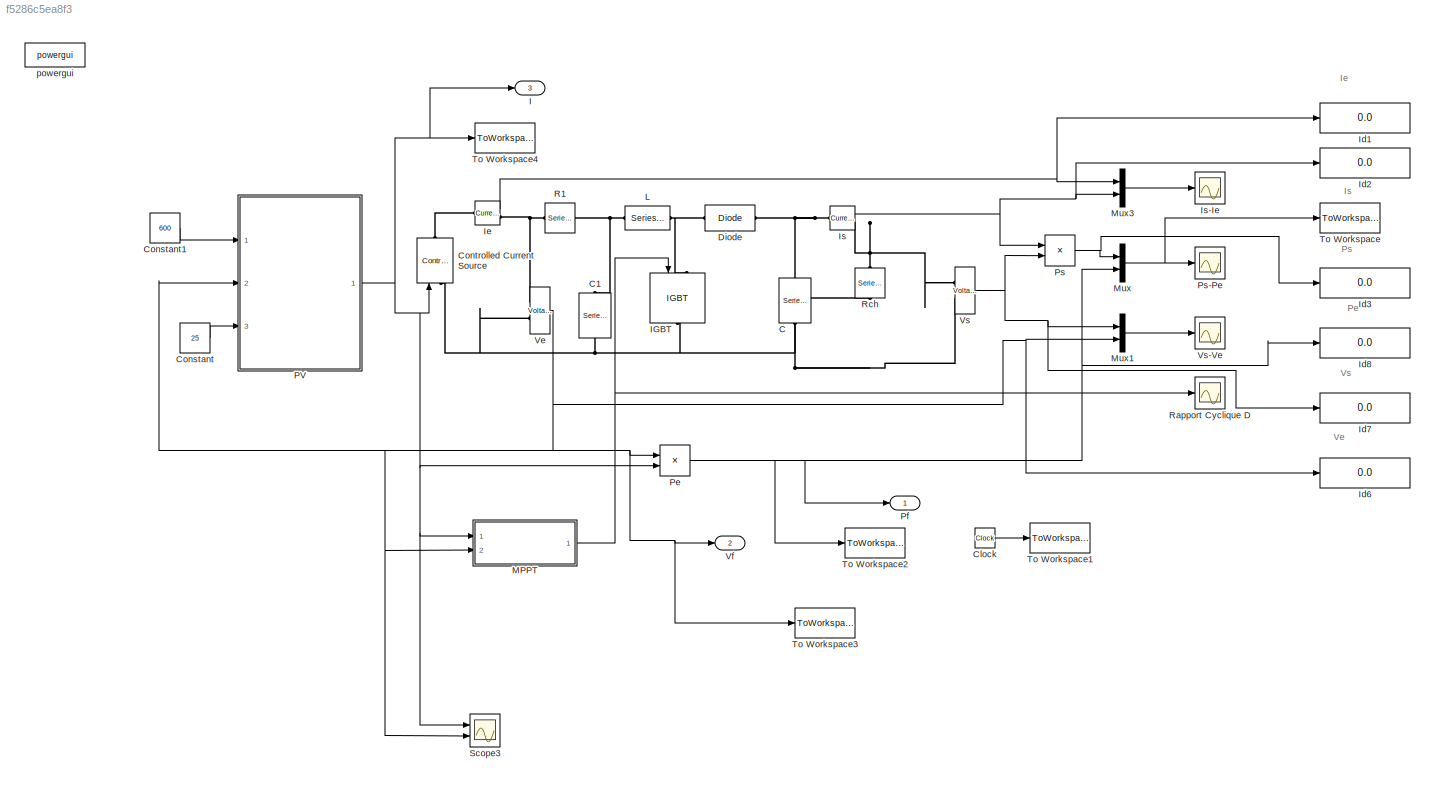
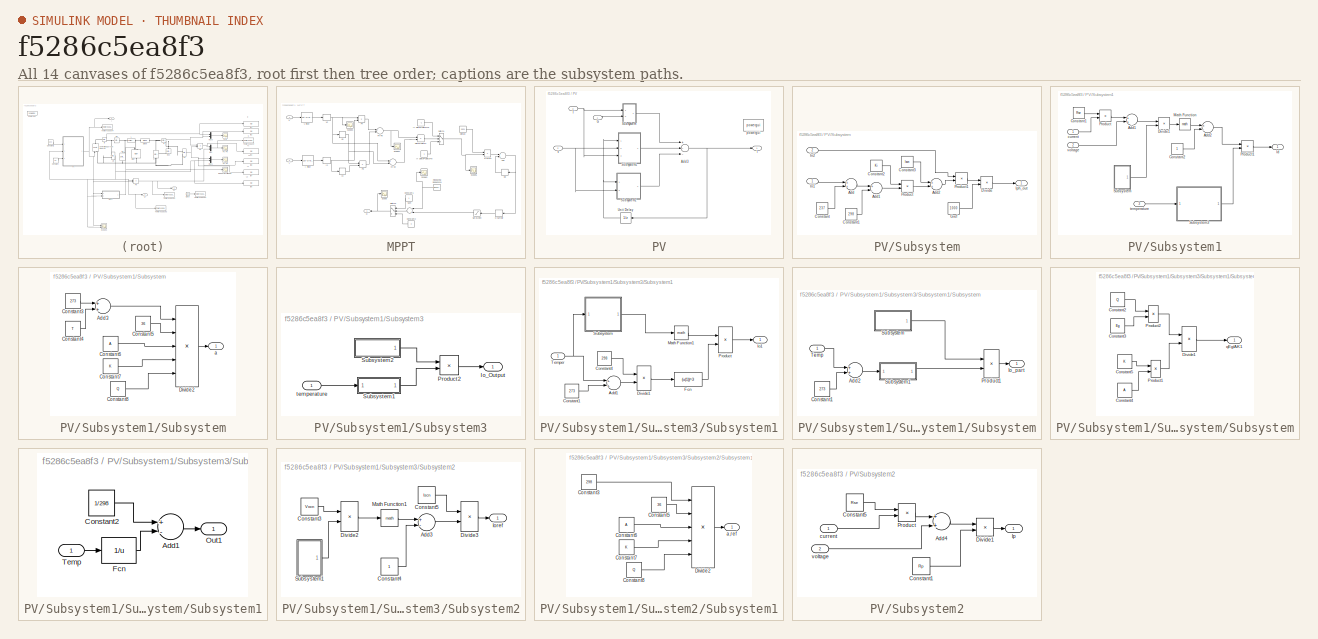
[diagram: thumbnail index - all 14 canvases of the model, root first then tree order]
MODEL slx_f5286c5ea8f3
KIND model
CONFIG AbsTol = auto
CONFIG FixedStep = auto
CONFIG MaxStep = auto
CONFIG MinStep = auto
CONFIG RelTol = 1e-3
CONFIG SampleTimeConstraint = Unconstrained
CONFIG Solver = VariableStepAuto
CONFIG SolverMode = Auto
CONFIG SolverName = VariableStepAuto
CONFIG StartTime = 0.0
CONFIG StopTime = 5
BLOCK [Reference] C  REF=powerlib/Elements/Series RLC Branch
  Ports = [0, 0, 0, 0, 0, 1, 1]
  SourceBlock = powerlib/Elements/Series RLC Branch
  SourceType = Series RLC Branch
BLOCK [Reference] C1  REF=powerlib/Elements/Series RLC Branch
  Ports = [0, 0, 0, 0, 0, 1, 1]
  SourceBlock = powerlib/Elements/Series RLC Branch
  SourceType = Series RLC Branch
BLOCK [Clock] Clock
BLOCK [Constant] Constant
  Value = 25
BLOCK [Constant] Constant1
  Value = 600
BLOCK [Reference] Controlled Current Source  REF=powerlib/Electrical
Sources/Controlled Current Source
  Ports = [1, 0, 0, 0, 0, 1, 1]
  SourceBlock = powerlib/Electrical\nSources/Controlled Current Source
  SourceType = Controlled Current Source
BLOCK [Reference] Diode  REF=powerlib/Power
Electronics/Diode
  AttributesFormatString = \n
  Ports = [0, 0, 0, 0, 0, 1, 1]
  SourceBlock = powerlib/Power\nElectronics/Diode
  SourceType = Diode
BLOCK [Outport] I  
  IconDisplay = Port number
  Port = 3
BLOCK [Reference] IGBT  REF=powerlib/Power
Electronics/IGBT
  Ports = [1, 0, 0, 0, 0, 1, 1]
  SourceBlock = powerlib/Power\nElectronics/IGBT
  SourceType = IGBT
BLOCK [Display] Id1
  Decimation = 1
  Ports = [1]
BLOCK [Display] Id2
  Decimation = 1
  Ports = [1]
BLOCK [Display] Id3
  Decimation = 1
  Ports = [1]
BLOCK [Display] Id6
  Decimation = 1
  Ports = [1]
BLOCK [Display] Id7
  Decimation = 1
  Ports = [1]
BLOCK [Display] Id8
  Decimation = 1
  Ports = [1]
BLOCK [Reference] Ie  REF=powerlib/Measurements/Current Measurement
  AttributesFormatString = \n
  Ports = [0, 1, 0, 0, 0, 1, 1]
  SourceBlock = powerlib/Measurements/Current Measurement
  SourceType = Current Measurement
  Tag = PoWeRsYsTeMmEaSuReMeNt
BLOCK [Reference] Is  REF=powerlib/Measurements/Current Measurement
  AttributesFormatString = \n
  Ports = [0, 1, 0, 0, 0, 1, 1]
  SourceBlock = powerlib/Measurements/Current Measurement
  SourceType = Current Measurement
  Tag = PoWeRsYsTeMmEaSuReMeNt
BLOCK [Scope] Is-Ie
  Ports = [1]
  ScopeSpecificationString = Simulink.scopes.TimeScopeBlockCfg('CurrentConfiguration', extmgr.ConfigurationSet(extmgr.Configuration('Core','General UI',true,'FigureColor',[1 1 1]),extmgr.Configuration('Core','Source UI',true),extmgr.Configuration('Sources','WiredSimulink',true,'DataLoggingVariableName','ScopeData1'),extmgr.Configuration('Visuals','Time Domain',true,'SerializedDisplays',{struct('MinYLimReal','-0.40884','MaxYLi...<+1724ch>
BLOCK [Reference] L  REF=powerlib/Elements/Series RLC Branch
  Ports = [0, 0, 0, 0, 0, 1, 1]
  SourceBlock = powerlib/Elements/Series RLC Branch
  SourceType = Series RLC Branch
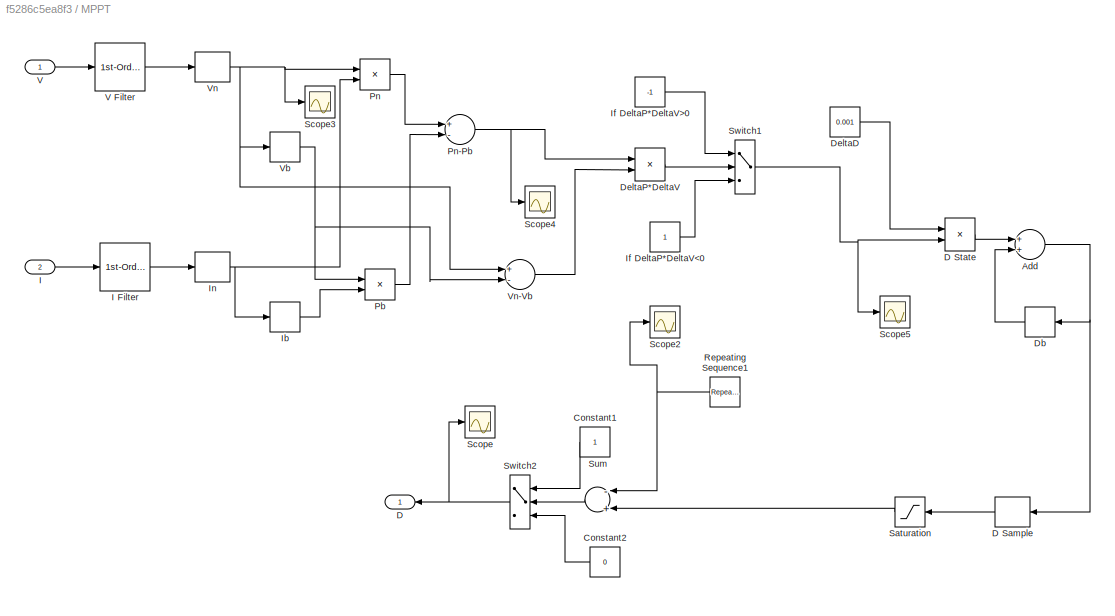
BLOCK [SubSystem] MPPT
  Ports = [2, 1]
  RequestExecContextInheritance = off
  Variant = off
BLOCK [Sum] MPPT/Add
  InputSameDT = off
  OutDataTypeStr = Inherit: Inherit via internal rule
  Ports = [2, 1]
  SaturateOnIntegerOverflow = off
BLOCK [Constant] MPPT/Constant1
  SampleTime = -1
BLOCK [Constant] MPPT/Constant2
  SampleTime = -1
  Value = 0
BLOCK [Outport] MPPT/D
  IconDisplay = Port number
BLOCK [ZeroOrderHold] MPPT/D Sample
  SampleTime = 1e-4
BLOCK [Product] MPPT/D State
  InputSameDT = off
  OutDataTypeStr = Inherit: Inherit via internal rule
  Ports = [2, 1]
  SaturateOnIntegerOverflow = off
BLOCK [Memory] MPPT/Db
  InheritSampleTime = on
  LinearizeAsDelay = on
BLOCK [Constant] MPPT/DeltaD
  Value = 0.001
BLOCK [Product] MPPT/DeltaP*DeltaV
  InputSameDT = off
  OutDataTypeStr = Inherit: Inherit via internal rule
  Ports = [2, 1]
  SaturateOnIntegerOverflow = off
BLOCK [Inport] MPPT/I
  IconDisplay = Port number
  Port = 2
BLOCK [Reference] MPPT/I Filter  REF=powerlib_extras/Control 
Blocks/1st-Order 
Filter
  Ports = [1, 1]
  SourceBlock = powerlib_extras/Control \nBlocks/1st-Order \nFilter
  SourceType = First-Order Filter
BLOCK [Memory] MPPT/Ib
  InheritSampleTime = on
  LinearizeAsDelay = on
BLOCK [Constant] MPPT/If DeltaP*DeltaV<0
BLOCK [Constant] MPPT/If DeltaP*DeltaV>0
  Value = -1
BLOCK [ZeroOrderHold] MPPT/In
  SampleTime = 1e-4
BLOCK [Product] MPPT/Pb
  InputSameDT = off
  OutDataTypeStr = Inherit: Inherit via internal rule
  Ports = [2, 1]
  SaturateOnIntegerOverflow = off
BLOCK [Product] MPPT/Pn
  InputSameDT = off
  OutDataTypeStr = Inherit: Inherit via internal rule
  Ports = [2, 1]
  SaturateOnIntegerOverflow = off
BLOCK [Sum] MPPT/Pn-Pb
  InputSameDT = off
  Inputs = +-
  OutDataTypeStr = Inherit: Inherit via internal rule
  Ports = [2, 1]
  SaturateOnIntegerOverflow = off
BLOCK [Reference] MPPT/Repeating Sequence1  REF=simulink/Sources/Repeating
Sequence
  Ports = [0, 1]
  SourceBlock = simulink/Sources/Repeating\nSequence
  SourceType = Repeating table
BLOCK [Saturate] MPPT/Saturation
  InputPortMap = u0
  LowerLimit = 0
  Ports = [1, 1]
  UpperLimit = 0.8
BLOCK [Scope] MPPT/Scope
  Ports = [1]
  ScopeSpecificationString = Simulink.scopes.TimeScopeBlockCfg('CurrentConfiguration', extmgr.ConfigurationSet(extmgr.Configuration('Core','General UI',true),extmgr.Configuration('Core','Source UI',true),extmgr.Configuration('Sources','WiredSimulink',true,'DataLoggingVariableName','ScopeData1'),extmgr.Configuration('Visuals','Time Domain',true,'SerializedDisplays',{struct('MinYLimReal','-0.125','MaxYLimReal','1.125','YLabelRe...<+1454ch>
BLOCK [Scope] MPPT/Scope2
  Ports = [1]
  ScopeSpecificationString = Simulink.scopes.TimeScopeBlockCfg('CurrentConfiguration', extmgr.ConfigurationSet(extmgr.Configuration('Core','General UI',true),extmgr.Configuration('Core','Source UI',true),extmgr.Configuration('Sources','WiredSimulink',true,'DataLoggingVariableName','ScopeData1'),extmgr.Configuration('Visuals','Time Domain',true,'SerializedDisplays',{struct('MinYLimReal','-0.125','MaxYLimReal','1.125','YLabelRe...<+1420ch>
BLOCK [Scope] MPPT/Scope3
  Ports = [1]
  ScopeSpecificationString = Simulink.scopes.TimeScopeBlockCfg('CurrentConfiguration', extmgr.ConfigurationSet(extmgr.Configuration('Core','General UI',true),extmgr.Configuration('Core','Source UI',true),extmgr.Configuration('Sources','WiredSimulink',true,'DataLoggingVariableName','ScopeData2'),extmgr.Configuration('Visuals','Time Domain',true,'SerializedDisplays',{struct('MinYLimReal','-84.75913','MaxYLimReal','109.01231','Y...<+1396ch>
BLOCK [Scope] MPPT/Scope4
  Ports = [1]
  ScopeSpecificationString = Simulink.scopes.TimeScopeBlockCfg('CurrentConfiguration', extmgr.ConfigurationSet(extmgr.Configuration('Core','General UI',true),extmgr.Configuration('Core','Source UI',true),extmgr.Configuration('Sources','WiredSimulink',true,'DataLoggingVariableName','ScopeData3'),extmgr.Configuration('Visuals','Time Domain',true,'SerializedDisplays',{struct('MinYLimReal','-6.68073','MaxYLimReal','7.59499','YLab...<+1418ch>
BLOCK [Scope] MPPT/Scope5
  Ports = [1]
  ScopeSpecificationString = Simulink.scopes.TimeScopeBlockCfg('CurrentConfiguration', extmgr.ConfigurationSet(extmgr.Configuration('Core','General UI',true),extmgr.Configuration('Core','Source UI',true),extmgr.Configuration('Sources','WiredSimulink',true,'DataLoggingVariableName','ScopeData4'),extmgr.Configuration('Visuals','Time Domain',true,'SerializedDisplays',{struct('MinYLimReal','-1.25','MaxYLimReal','1.25','YLabelReal...<+1402ch>
BLOCK [Sum] MPPT/Sum
  InputSameDT = off
  Inputs = -+
  OutDataTypeStr = Inherit: Inherit via internal rule
  Ports = [2, 1]
BLOCK [Switch] MPPT/Switch1
  InputSameDT = off
  SaturateOnIntegerOverflow = off
BLOCK [Switch] MPPT/Switch2
  InputSameDT = off
  SaturateOnIntegerOverflow = off
BLOCK [Inport] MPPT/V
  IconDisplay = Port number
BLOCK [Reference] MPPT/V Filter  REF=powerlib_extras/Control 
Blocks/1st-Order 
Filter
  Ports = [1, 1]
  SourceBlock = powerlib_extras/Control \nBlocks/1st-Order \nFilter
  SourceType = First-Order Filter
BLOCK [Memory] MPPT/Vb
  InheritSampleTime = on
  LinearizeAsDelay = on
BLOCK [ZeroOrderHold] MPPT/Vn
  SampleTime = 1e-4
BLOCK [Sum] MPPT/Vn-Vb
  InputSameDT = off
  Inputs = +-
  OutDataTypeStr = Inherit: Inherit via internal rule
  Ports = [2, 1]
  SaturateOnIntegerOverflow = off
BLOCK [Mux] Mux
  DisplayOption = bar
  Inputs = 2
  Ports = [2, 1]
BLOCK [Mux] Mux1
  DisplayOption = bar
  Inputs = 2
  Ports = [2, 1]
BLOCK [Mux] Mux3
  DisplayOption = bar
  Inputs = 2
  Ports = [2, 1]
BLOCK [SubSystem] PV
  Ports = [3, 1]
  RequestExecContextInheritance = off
  Variant = off
BLOCK [Sum] PV/Add3
  InputSameDT = off
  Inputs = +--
  OutDataTypeStr = Inherit: Inherit via internal rule
  Ports = [3, 1]
  SaturateOnIntegerOverflow = off
BLOCK [Inport] PV/G 
  IconDisplay = Port number
BLOCK [Outport] PV/I 
  IconDisplay = Port number
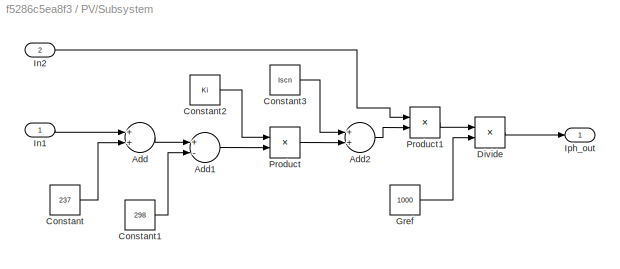
BLOCK [SubSystem] PV/Subsystem
  Ports = [2, 1]
  RequestExecContextInheritance = off
  Variant = off
BLOCK [Sum] PV/Subsystem/Add
  InputSameDT = off
  OutDataTypeStr = Inherit: Inherit via internal rule
  Ports = [2, 1]
  SaturateOnIntegerOverflow = off
BLOCK [Sum] PV/Subsystem/Add1
  InputSameDT = off
  Inputs = +-
  OutDataTypeStr = Inherit: Inherit via internal rule
  Ports = [2, 1]
  SaturateOnIntegerOverflow = off
BLOCK [Sum] PV/Subsystem/Add2
  InputSameDT = off
  OutDataTypeStr = Inherit: Inherit via internal rule
  Ports = [2, 1]
  SaturateOnIntegerOverflow = off
BLOCK [Constant] PV/Subsystem/Constant
  Value = 237
BLOCK [Constant] PV/Subsystem/Constant1
  Value = 298
BLOCK [Constant] PV/Subsystem/Constant2
  Value = Ki
BLOCK [Constant] PV/Subsystem/Constant3
  Value = Iscn
BLOCK [Product] PV/Subsystem/Divide
  InputSameDT = off
  Inputs = */
  OutDataTypeStr = Inherit: Inherit via internal rule
  Ports = [2, 1]
  RndMeth = Floor
  SaturateOnIntegerOverflow = off
BLOCK [Constant] PV/Subsystem/Gref 
  Value = 1000
BLOCK [Inport] PV/Subsystem/In1
  IconDisplay = Port number
BLOCK [Inport] PV/Subsystem/In2
  IconDisplay = Port number
  Port = 2
BLOCK [Outport] PV/Subsystem/Iph_out
  IconDisplay = Port number
BLOCK [Product] PV/Subsystem/Product
  InputSameDT = off
  OutDataTypeStr = Inherit: Inherit via internal rule
  Ports = [2, 1]
  RndMeth = Floor
  SaturateOnIntegerOverflow = off
BLOCK [Product] PV/Subsystem/Product1
  InputSameDT = off
  OutDataTypeStr = Inherit: Inherit via internal rule
  Ports = [2, 1]
  RndMeth = Floor
  SaturateOnIntegerOverflow = off
BLOCK [SubSystem] PV/Subsystem1
  Ports = [3, 1]
  RequestExecContextInheritance = off
  Variant = off
BLOCK [Sum] PV/Subsystem1/Add1
  InputSameDT = off
  OutDataTypeStr = Inherit: Inherit via internal rule
  Ports = [2, 1]
  SaturateOnIntegerOverflow = off
BLOCK [Sum] PV/Subsystem1/Add2
  InputSameDT = off
  Inputs = +-
  OutDataTypeStr = Inherit: Inherit via internal rule
  Ports = [2, 1]
  SaturateOnIntegerOverflow = off
BLOCK [Constant] PV/Subsystem1/Constant1
  Value = Rse
BLOCK [Constant] PV/Subsystem1/Constant2
BLOCK [Product] PV/Subsystem1/Divide1
  InputSameDT = off
  Inputs = */
  OutDataTypeStr = Inherit: Inherit via internal rule
  Ports = [2, 1]
  RndMeth = Floor
  SaturateOnIntegerOverflow = off
BLOCK [Outport] PV/Subsystem1/Id
  IconDisplay = Port number
BLOCK [Math] PV/Subsystem1/Math Function
  Ports = [1, 1]
BLOCK [Product] PV/Subsystem1/Product
  InputSameDT = off
  OutDataTypeStr = Inherit: Inherit via internal rule
  Ports = [2, 1]
  RndMeth = Floor
  SaturateOnIntegerOverflow = off
BLOCK [Product] PV/Subsystem1/Product1
  InputSameDT = off
  OutDataTypeStr = Inherit: Inherit via internal rule
  Ports = [2, 1]
  RndMeth = Floor
  SaturateOnIntegerOverflow = off
BLOCK [SubSystem] PV/Subsystem1/Subsystem
  Ports = [0, 1]
  RequestExecContextInheritance = off
  Variant = off
BLOCK [Sum] PV/Subsystem1/Subsystem/Add3
  InputSameDT = off
  OutDataTypeStr = Inherit: Inherit via internal rule
  Ports = [2, 1]
  SaturateOnIntegerOverflow = off
BLOCK [Constant] PV/Subsystem1/Subsystem/Constant3
  Value = 273
BLOCK [Constant] PV/Subsystem1/Subsystem/Constant4
  Value = T
BLOCK [Constant] PV/Subsystem1/Subsystem/Constant5
  Value = 36
BLOCK [Constant] PV/Subsystem1/Subsystem/Constant6
  Value = A
BLOCK [Constant] PV/Subsystem1/Subsystem/Constant7
  Value = K
BLOCK [Constant] PV/Subsystem1/Subsystem/Constant8
  Value = Q
BLOCK [Product] PV/Subsystem1/Subsystem/Divide2
  InputSameDT = off
  Inputs = ****/
  OutDataTypeStr = Inherit: Inherit via internal rule
  Ports = [5, 1]
  RndMeth = Floor
  SaturateOnIntegerOverflow = off
BLOCK [Outport] PV/Subsystem1/Subsystem/a
  IconDisplay = Port number
BLOCK [SubSystem] PV/Subsystem1/Subsystem3
  Ports = [1, 1]
  RequestExecContextInheritance = off
  Variant = off
BLOCK [Outport] PV/Subsystem1/Subsystem3/Io_Output
  IconDisplay = Port number
BLOCK [Product] PV/Subsystem1/Subsystem3/Product2
  InputSameDT = off
  OutDataTypeStr = Inherit: Inherit via internal rule
  Ports = [2, 1]
  RndMeth = Floor
  SaturateOnIntegerOverflow = off
BLOCK [SubSystem] PV/Subsystem1/Subsystem3/Subsystem1
  Ports = [1, 1]
  RequestExecContextInheritance = off
  Variant = off
BLOCK [Sum] PV/Subsystem1/Subsystem3/Subsystem1/Add1
  InputSameDT = off
  OutDataTypeStr = Inherit: Inherit via internal rule
  Ports = [2, 1]
  SaturateOnIntegerOverflow = off
BLOCK [Constant] PV/Subsystem1/Subsystem3/Subsystem1/Constant1
  Value = 273
BLOCK [Constant] PV/Subsystem1/Subsystem3/Subsystem1/Constant4
  Value = 298
BLOCK [Product] PV/Subsystem1/Subsystem3/Subsystem1/Divide1
  InputSameDT = off
  Inputs = */
  OutDataTypeStr = Inherit: Inherit via internal rule
  Ports = [2, 1]
  RndMeth = Floor
  SaturateOnIntegerOverflow = off
BLOCK [Fcn] PV/Subsystem1/Subsystem3/Subsystem1/Fcn
  Expr = (u(1))^3
BLOCK [Outport] PV/Subsystem1/Subsystem3/Subsystem1/Io1
  IconDisplay = Port number
BLOCK [Math] PV/Subsystem1/Subsystem3/Subsystem1/Math Function1
  Ports = [1, 1]
BLOCK [Product] PV/Subsystem1/Subsystem3/Subsystem1/Product
  InputSameDT = off
  OutDataTypeStr = Inherit: Inherit via internal rule
  Ports = [2, 1]
  RndMeth = Floor
  SaturateOnIntegerOverflow = off
BLOCK [SubSystem] PV/Subsystem1/Subsystem3/Subsystem1/Subsystem
  Ports = [1, 1]
  RequestExecContextInheritance = off
  Variant = off
BLOCK [Sum] PV/Subsystem1/Subsystem3/Subsystem1/Subsystem/Add2
  InputSameDT = off
  OutDataTypeStr = Inherit: Inherit via internal rule
  Ports = [2, 1]
  SaturateOnIntegerOverflow = off
BLOCK [Constant] PV/Subsystem1/Subsystem3/Subsystem1/Subsystem/Constant1
  Value = 273
BLOCK [Outport] PV/Subsystem1/Subsystem3/Subsystem1/Subsystem/Io_part
  IconDisplay = Port number
BLOCK [Product] PV/Subsystem1/Subsystem3/Subsystem1/Subsystem/Product1
  InputSameDT = off
  OutDataTypeStr = Inherit: Inherit via internal rule
  Ports = [2, 1]
  RndMeth = Floor
  SaturateOnIntegerOverflow = off
BLOCK [SubSystem] PV/Subsystem1/Subsystem3/Subsystem1/Subsystem/Subsystem
  Ports = [0, 1]
  RequestExecContextInheritance = off
  Variant = off
BLOCK [Constant] PV/Subsystem1/Subsystem3/Subsystem1/Subsystem/Subsystem/Constant2
  Value = Q
BLOCK [Constant] PV/Subsystem1/Subsystem3/Subsystem1/Subsystem/Subsystem/Constant3
  Value = Eg
BLOCK [Constant] PV/Subsystem1/Subsystem3/Subsystem1/Subsystem/Subsystem/Constant4
  Value = A
BLOCK [Constant] PV/Subsystem1/Subsystem3/Subsystem1/Subsystem/Subsystem/Constant5
  Value = K
BLOCK [Product] PV/Subsystem1/Subsystem3/Subsystem1/Subsystem/Subsystem/Divide1
  InputSameDT = off
  Inputs = */
  OutDataTypeStr = Inherit: Inherit via internal rule
  Ports = [2, 1]
  RndMeth = Floor
  SaturateOnIntegerOverflow = off
BLOCK [Product] PV/Subsystem1/Subsystem3/Subsystem1/Subsystem/Subsystem/Product1
  InputSameDT = off
  OutDataTypeStr = Inherit: Inherit via internal rule
  Ports = [2, 1]
  RndMeth = Floor
  SaturateOnIntegerOverflow = off
BLOCK [Product] PV/Subsystem1/Subsystem3/Subsystem1/Subsystem/Subsystem/Product2
  InputSameDT = off
  OutDataTypeStr = Inherit: Inherit via internal rule
  Ports = [2, 1]
  RndMeth = Floor
  SaturateOnIntegerOverflow = off
BLOCK [Outport] PV/Subsystem1/Subsystem3/Subsystem1/Subsystem/Subsystem/qEg//AK1
  IconDisplay = Port number
BLOCK [SubSystem] PV/Subsystem1/Subsystem3/Subsystem1/Subsystem/Subsystem1
  Ports = [1, 1]
  RequestExecContextInheritance = off
  Variant = off
BLOCK [Sum] PV/Subsystem1/Subsystem3/Subsystem1/Subsystem/Subsystem1/Add1
  InputSameDT = off
  Inputs = +-
  OutDataTypeStr = Inherit: Inherit via internal rule
  Ports = [2, 1]
  SaturateOnIntegerOverflow = off
BLOCK [Constant] PV/Subsystem1/Subsystem3/Subsystem1/Subsystem/Subsystem1/Constant2
  Value = 1/298
BLOCK [Fcn] PV/Subsystem1/Subsystem3/Subsystem1/Subsystem/Subsystem1/Fcn
  Expr = 1/u
BLOCK [Outport] PV/Subsystem1/Subsystem3/Subsystem1/Subsystem/Subsystem1/Out1
  IconDisplay = Port number
BLOCK [Inport] PV/Subsystem1/Subsystem3/Subsystem1/Subsystem/Subsystem1/Temp
  IconDisplay = Port number
BLOCK [Inport] PV/Subsystem1/Subsystem3/Subsystem1/Subsystem/Temp
  IconDisplay = Port number
BLOCK [Inport] PV/Subsystem1/Subsystem3/Subsystem1/Temper
  IconDisplay = Port number
BLOCK [SubSystem] PV/Subsystem1/Subsystem3/Subsystem2
  Ports = [0, 1]
  RequestExecContextInheritance = off
  Variant = off
BLOCK [Sum] PV/Subsystem1/Subsystem3/Subsystem2/Add3
  InputSameDT = off
  Inputs = +-
  OutDataTypeStr = Inherit: Inherit via internal rule
  Ports = [2, 1]
  SaturateOnIntegerOverflow = off
BLOCK [Constant] PV/Subsystem1/Subsystem3/Subsystem2/Constant3
  Value = Vocn
BLOCK [Constant] PV/Subsystem1/Subsystem3/Subsystem2/Constant4
BLOCK [Constant] PV/Subsystem1/Subsystem3/Subsystem2/Constant5
  Value = Iscn
BLOCK [Product] PV/Subsystem1/Subsystem3/Subsystem2/Divide2
  InputSameDT = off
  Inputs = */
  OutDataTypeStr = Inherit: Inherit via internal rule
  Ports = [2, 1]
  RndMeth = Floor
  SaturateOnIntegerOverflow = off
BLOCK [Product] PV/Subsystem1/Subsystem3/Subsystem2/Divide3
  InputSameDT = off
  Inputs = */
  OutDataTypeStr = Inherit: Inherit via internal rule
  Ports = [2, 1]
  RndMeth = Floor
  SaturateOnIntegerOverflow = off
BLOCK [Outport] PV/Subsystem1/Subsystem3/Subsystem2/Ioref
  IconDisplay = Port number
BLOCK [Math] PV/Subsystem1/Subsystem3/Subsystem2/Math Function1
  Ports = [1, 1]
BLOCK [SubSystem] PV/Subsystem1/Subsystem3/Subsystem2/Subsystem1
  Ports = [0, 1]
  RequestExecContextInheritance = off
  Variant = off
BLOCK [Constant] PV/Subsystem1/Subsystem3/Subsystem2/Subsystem1/Constant3
  Value = 298
BLOCK [Constant] PV/Subsystem1/Subsystem3/Subsystem2/Subsystem1/Constant5
  Value = 36
BLOCK [Constant] PV/Subsystem1/Subsystem3/Subsystem2/Subsystem1/Constant6
  Value = A
BLOCK [Constant] PV/Subsystem1/Subsystem3/Subsystem2/Subsystem1/Constant7
  Value = K
BLOCK [Constant] PV/Subsystem1/Subsystem3/Subsystem2/Subsystem1/Constant8
  Value = Q
BLOCK [Product] PV/Subsystem1/Subsystem3/Subsystem2/Subsystem1/Divide2
  InputSameDT = off
  Inputs = ****/
  OutDataTypeStr = Inherit: Inherit via internal rule
  Ports = [5, 1]
  RndMeth = Floor
  SaturateOnIntegerOverflow = off
BLOCK [Outport] PV/Subsystem1/Subsystem3/Subsystem2/Subsystem1/a,ref
  IconDisplay = Port number
BLOCK [Inport] PV/Subsystem1/Subsystem3/temperature
  IconDisplay = Port number
BLOCK [Inport] PV/Subsystem1/current
  IconDisplay = Port number
BLOCK [Inport] PV/Subsystem1/temperature
  IconDisplay = Port number
  Port = 3
BLOCK [Inport] PV/Subsystem1/voltage
  IconDisplay = Port number
  Port = 2
BLOCK [SubSystem] PV/Subsystem2
  Ports = [2, 1]
  RequestExecContextInheritance = off
  Variant = off
BLOCK [Sum] PV/Subsystem2/Add4
  InputSameDT = off
  OutDataTypeStr = Inherit: Inherit via internal rule
  Ports = [2, 1]
  SaturateOnIntegerOverflow = off
BLOCK [Constant] PV/Subsystem2/Constant1
  Value = Rp
BLOCK [Constant] PV/Subsystem2/Constant5
  Value = Rse
BLOCK [Product] PV/Subsystem2/Divide1
  InputSameDT = off
  Inputs = */
  OutDataTypeStr = Inherit: Inherit via internal rule
  Ports = [2, 1]
  RndMeth = Floor
  SaturateOnIntegerOverflow = off
BLOCK [Outport] PV/Subsystem2/Ip
  IconDisplay = Port number
BLOCK [Product] PV/Subsystem2/Product
  InputSameDT = off
  OutDataTypeStr = Inherit: Inherit via internal rule
  Ports = [2, 1]
  RndMeth = Floor
  SaturateOnIntegerOverflow = off
BLOCK [Inport] PV/Subsystem2/current 
  IconDisplay = Port number
BLOCK [Inport] PV/Subsystem2/voltage
  IconDisplay = Port number
  Port = 2
BLOCK [Inport] PV/T
  IconDisplay = Port number
  Port = 3
BLOCK [UnitDelay] PV/Unit Delay
  InputProcessing = Elements as channels (sample based)
BLOCK [Inport] PV/V
  IconDisplay = Port number
  Port = 2
BLOCK [Reference] PV/powergui  REF=powerlib/powergui
  Ports = []
  Priority = 1
  SourceBlock = powerlib/powergui
  SourceType = PSB option menu block
  UserDataPersistent = on
BLOCK [Product] Pe
  InputSameDT = off
  OutDataTypeStr = Inherit: Inherit via internal rule
  Ports = [2, 1]
  SaturateOnIntegerOverflow = off
BLOCK [Outport] Pf
  IconDisplay = Port number
BLOCK [Product] Ps
  InputSameDT = off
  OutDataTypeStr = Inherit: Inherit via internal rule
  Ports = [2, 1]
  SaturateOnIntegerOverflow = off
BLOCK [Scope] Ps-Pe
  Ports = [1]
  ScopeSpecificationString = Simulink.scopes.TimeScopeBlockCfg('CurrentConfiguration', extmgr.ConfigurationSet(extmgr.Configuration('Core','General UI',true,'FigureColor',[1 1 1]),extmgr.Configuration('Core','Source UI',true),extmgr.Configuration('Sources','WiredSimulink',true,'DataLoggingVariableName','ScopeData2'),extmgr.Configuration('Visuals','Time Domain',true,'SerializedDisplays',{struct('MinYLimReal','-56.41038','MaxYL...<+1685ch>
BLOCK [Reference] R1  REF=powerlib/Elements/Series RLC Branch
  Ports = [0, 0, 0, 0, 0, 1, 1]
  SourceBlock = powerlib/Elements/Series RLC Branch
  SourceType = Series RLC Branch
BLOCK [Scope] Rapport Cyclique D
  Ports = [1]
  ScopeSpecificationString = Simulink.scopes.TimeScopeBlockCfg('CurrentConfiguration', extmgr.ConfigurationSet(extmgr.Configuration('Core','General UI',true,'FigureColor',[1 1 1]),extmgr.Configuration('Core','Source UI',true),extmgr.Configuration('Sources','WiredSimulink',true,'DataLoggingVariableName','ScopeData3'),extmgr.Configuration('Visuals','Time Domain',true,'SerializedDisplays',{struct('MinYLimReal','0.46221','MaxYLim...<+1750ch>
BLOCK [Reference] Rch  REF=powerlib/Elements/Series RLC Branch
  Ports = [0, 0, 0, 0, 0, 1, 1]
  SourceBlock = powerlib/Elements/Series RLC Branch
  SourceType = Series RLC Branch
BLOCK [Scope] Scope3
  NumInputPorts = 2
  Ports = [2]
  ScopeSpecificationString = Simulink.scopes.TimeScopeBlockCfg('CurrentConfiguration', extmgr.ConfigurationSet(extmgr.Configuration('Core','General UI',true),extmgr.Configuration('Core','Source UI',true),extmgr.Configuration('Sources','WiredSimulink',true,'DataLoggingVariableName','ScopeData4'),extmgr.Configuration('Visuals','Time Domain',true,'SerializedDisplays',{struct('MinYLimReal','-2.43546','MaxYLimReal','30.59064','YLa...<+1823ch>
BLOCK [ToWorkspace] To Workspace
  MaxDataPoints = inf
  Ports = [1]
  SampleTime = -1
  VariableName = P
BLOCK [ToWorkspace] To Workspace1
  MaxDataPoints = inf
  Ports = [1]
  SampleTime = -1
  VariableName = t
BLOCK [ToWorkspace] To Workspace2
  MaxDataPoints = inf
  Ports = [1]
  SampleTime = -1
  VariableName = Pf
BLOCK [ToWorkspace] To Workspace3
  MaxDataPoints = inf
  Ports = [1]
  SampleTime = -1
  VariableName = Vf
BLOCK [ToWorkspace] To Workspace4
  MaxDataPoints = inf
  Ports = [1]
  SampleTime = -1
  VariableName = If
BLOCK [Reference] Ve  REF=powerlib/Measurements/Voltage Measurement
  AttributesFormatString = \n
  Ports = [0, 1, 0, 0, 0, 2]
  SourceBlock = powerlib/Measurements/Voltage Measurement
  SourceType = Voltage Measurement
  Tag = PoWeRsYsTeMmEaSuReMeNt
BLOCK [Outport] Vf
  IconDisplay = Port number
  Port = 2
BLOCK [Reference] Vs  REF=powerlib/Measurements/Voltage Measurement
  AttributesFormatString = \n
  Ports = [0, 1, 0, 0, 0, 2]
  SourceBlock = powerlib/Measurements/Voltage Measurement
  SourceType = Voltage Measurement
  Tag = PoWeRsYsTeMmEaSuReMeNt
BLOCK [Scope] Vs-Ve
  Ports = [1]
  ScopeSpecificationString = Simulink.scopes.TimeScopeBlockCfg('CurrentConfiguration', extmgr.ConfigurationSet(extmgr.Configuration('Core','General UI',true,'FigureColor',[1 1 1]),extmgr.Configuration('Core','Source UI',true),extmgr.Configuration('Sources','WiredSimulink',true,'DataLoggingVariableName','ScopeData5'),extmgr.Configuration('Visuals','Time Domain',true,'SerializedDisplays',{struct('MinYLimReal','-17.29013','MaxYL...<+1679ch>
BLOCK [Reference] powergui  REF=powerlib/powergui
  Ports = []
  SourceBlock = powerlib/powergui
  SourceType = PSB option menu block
  UserDataPersistent = on
ANNOTATION (root): Ie
ANNOTATION (root): Is
ANNOTATION (root): Pe
ANNOTATION (root): Ps
ANNOTATION (root): Ve
ANNOTATION (root): Vs
LINE Clock:1 -> To Workspace1:1
LINE Constant1:1 -> PV:1
LINE Constant:1 -> PV:3
NET Ie:1 -> Id1:1, Mux3:1
NET Is:1 -> Id2:1, Mux3:2, Ps:1
NET MPPT/Add:1 -> MPPT/D Sample:1, MPPT/Db:1
LINE MPPT/Constant1:1 -> MPPT/Switch2:1
LINE MPPT/Constant2:1 -> MPPT/Switch2:3
LINE MPPT/D Sample:1 -> MPPT/Saturation:1
LINE MPPT/D State:1 -> MPPT/Add:1
LINE MPPT/Db:1 -> MPPT/Add:2
LINE MPPT/DeltaD:1 -> MPPT/D State:1
LINE MPPT/DeltaP*DeltaV:1 -> MPPT/Switch1:2
LINE MPPT/I Filter:1 -> MPPT/In:1
LINE MPPT/I:1 -> MPPT/I Filter:1
LINE MPPT/Ib:1 -> MPPT/Pb:2
LINE MPPT/If DeltaP*DeltaV<0:1 -> MPPT/Switch1:3
LINE MPPT/If DeltaP*DeltaV>0:1 -> MPPT/Switch1:1
NET MPPT/In:1 -> MPPT/Ib:1, MPPT/Pn:2
LINE MPPT/Pb:1 -> MPPT/Pn-Pb:2
NET MPPT/Pn-Pb:1 -> MPPT/DeltaP*DeltaV:1, MPPT/Scope4:1
LINE MPPT/Pn:1 -> MPPT/Pn-Pb:1
NET MPPT/Repeating Sequence1:1 -> MPPT/Scope2:1, MPPT/Sum:1
LINE MPPT/Saturation:1 -> MPPT/Sum:2
LINE MPPT/Sum:1 -> MPPT/Switch2:2
NET MPPT/Switch1:1 -> MPPT/D State:2, MPPT/Scope5:1
NET MPPT/Switch2:1 -> MPPT/D:1, MPPT/Scope:1
LINE MPPT/V Filter:1 -> MPPT/Vn:1
LINE MPPT/V:1 -> MPPT/V Filter:1
NET MPPT/Vb:1 -> MPPT/Pb:1, MPPT/Vn-Vb:2
LINE MPPT/Vn-Vb:1 -> MPPT/DeltaP*DeltaV:2
NET MPPT/Vn:1 -> MPPT/Pn:1, MPPT/Scope3:1, MPPT/Vb:1, MPPT/Vn-Vb:1
NET MPPT:1 -> IGBT:1, Rapport Cyclique D:1
LINE Mux1:1 -> Vs-Ve:1
LINE Mux3:1 -> Is-Ie:1
NET Mux:1 -> Ps-Pe:1, To Workspace:1
NET PV/Add3:1 -> PV/I :1, PV/Unit Delay:1
LINE PV/G :1 -> PV/Subsystem:2
LINE PV/Subsystem/Add1:1 -> PV/Subsystem/Product:2
LINE PV/Subsystem/Add2:1 -> PV/Subsystem/Product1:2
LINE PV/Subsystem/Add:1 -> PV/Subsystem/Add1:1
LINE PV/Subsystem/Constant1:1 -> PV/Subsystem/Add1:2
LINE PV/Subsystem/Constant2:1 -> PV/Subsystem/Product:1
LINE PV/Subsystem/Constant3:1 -> PV/Subsystem/Add2:1
LINE PV/Subsystem/Constant:1 -> PV/Subsystem/Add:2
LINE PV/Subsystem/Divide:1 -> PV/Subsystem/Iph_out:1
LINE PV/Subsystem/Gref :1 -> PV/Subsystem/Divide:2
LINE PV/Subsystem/In1:1 -> PV/Subsystem/Add:1
LINE PV/Subsystem/In2:1 -> PV/Subsystem/Product1:1
LINE PV/Subsystem/Product1:1 -> PV/Subsystem/Divide:1
LINE PV/Subsystem/Product:1 -> PV/Subsystem/Add2:2
LINE PV/Subsystem1/Add1:1 -> PV/Subsystem1/Divide1:1
LINE PV/Subsystem1/Add2:1 -> PV/Subsystem1/Product1:1
LINE PV/Subsystem1/Constant1:1 -> PV/Subsystem1/Product:1
LINE PV/Subsystem1/Constant2:1 -> PV/Subsystem1/Add2:2
LINE PV/Subsystem1/Divide1:1 -> PV/Subsystem1/Math Function:1
LINE PV/Subsystem1/Math Function:1 -> PV/Subsystem1/Add2:1
LINE PV/Subsystem1/Product1:1 -> PV/Subsystem1/Id:1
LINE PV/Subsystem1/Product:1 -> PV/Subsystem1/Add1:1
LINE PV/Subsystem1/Subsystem/Add3:1 -> PV/Subsystem1/Subsystem/Divide2:1
LINE PV/Subsystem1/Subsystem/Constant3:1 -> PV/Subsystem1/Subsystem/Add3:1
LINE PV/Subsystem1/Subsystem/Constant4:1 -> PV/Subsystem1/Subsystem/Add3:2
LINE PV/Subsystem1/Subsystem/Constant5:1 -> PV/Subsystem1/Subsystem/Divide2:2
LINE PV/Subsystem1/Subsystem/Constant6:1 -> PV/Subsystem1/Subsystem/Divide2:3
LINE PV/Subsystem1/Subsystem/Constant7:1 -> PV/Subsystem1/Subsystem/Divide2:4
LINE PV/Subsystem1/Subsystem/Constant8:1 -> PV/Subsystem1/Subsystem/Divide2:5
LINE PV/Subsystem1/Subsystem/Divide2:1 -> PV/Subsystem1/Subsystem/a:1
LINE PV/Subsystem1/Subsystem3/Product2:1 -> PV/Subsystem1/Subsystem3/Io_Output:1
LINE PV/Subsystem1/Subsystem3/Subsystem1/Add1:1 -> PV/Subsystem1/Subsystem3/Subsystem1/Divide1:2
LINE PV/Subsystem1/Subsystem3/Subsystem1/Constant1:1 -> PV/Subsystem1/Subsystem3/Subsystem1/Add1:2
LINE PV/Subsystem1/Subsystem3/Subsystem1/Constant4:1 -> PV/Subsystem1/Subsystem3/Subsystem1/Divide1:1
LINE PV/Subsystem1/Subsystem3/Subsystem1/Divide1:1 -> PV/Subsystem1/Subsystem3/Subsystem1/Fcn:1
LINE PV/Subsystem1/Subsystem3/Subsystem1/Fcn:1 -> PV/Subsystem1/Subsystem3/Subsystem1/Product:2
LINE PV/Subsystem1/Subsystem3/Subsystem1/Math Function1:1 -> PV/Subsystem1/Subsystem3/Subsystem1/Product:1
LINE PV/Subsystem1/Subsystem3/Subsystem1/Product:1 -> PV/Subsystem1/Subsystem3/Subsystem1/Io1:1
LINE PV/Subsystem1/Subsystem3/Subsystem1/Subsystem/Add2:1 -> PV/Subsystem1/Subsystem3/Subsystem1/Subsystem/Subsystem1:1
LINE PV/Subsystem1/Subsystem3/Subsystem1/Subsystem/Constant1:1 -> PV/Subsystem1/Subsystem3/Subsystem1/Subsystem/Add2:2
LINE PV/Subsystem1/Subsystem3/Subsystem1/Subsystem/Product1:1 -> PV/Subsystem1/Subsystem3/Subsystem1/Subsystem/Io_part:1
LINE PV/Subsystem1/Subsystem3/Subsystem1/Subsystem/Subsystem/Constant2:1 -> PV/Subsystem1/Subsystem3/Subsystem1/Subsystem/Subsystem/Product2:1
LINE PV/Subsystem1/Subsystem3/Subsystem1/Subsystem/Subsystem/Constant3:1 -> PV/Subsystem1/Subsystem3/Subsystem1/Subsystem/Subsystem/Product2:2
LINE PV/Subsystem1/Subsystem3/Subsystem1/Subsystem/Subsystem/Constant4:1 -> PV/Subsystem1/Subsystem3/Subsystem1/Subsystem/Subsystem/Product1:2
LINE PV/Subsystem1/Subsystem3/Subsystem1/Subsystem/Subsystem/Constant5:1 -> PV/Subsystem1/Subsystem3/Subsystem1/Subsystem/Subsystem/Product1:1
LINE PV/Subsystem1/Subsystem3/Subsystem1/Subsystem/Subsystem/Divide1:1 -> PV/Subsystem1/Subsystem3/Subsystem1/Subsystem/Subsystem/qEg//AK1:1
LINE PV/Subsystem1/Subsystem3/Subsystem1/Subsystem/Subsystem/Product1:1 -> PV/Subsystem1/Subsystem3/Subsystem1/Subsystem/Subsystem/Divide1:2
LINE PV/Subsystem1/Subsystem3/Subsystem1/Subsystem/Subsystem/Product2:1 -> PV/Subsystem1/Subsystem3/Subsystem1/Subsystem/Subsystem/Divide1:1
LINE PV/Subsystem1/Subsystem3/Subsystem1/Subsystem/Subsystem1/Add1:1 -> PV/Subsystem1/Subsystem3/Subsystem1/Subsystem/Subsystem1/Out1:1
LINE PV/Subsystem1/Subsystem3/Subsystem1/Subsystem/Subsystem1/Constant2:1 -> PV/Subsystem1/Subsystem3/Subsystem1/Subsystem/Subsystem1/Add1:1
LINE PV/Subsystem1/Subsystem3/Subsystem1/Subsystem/Subsystem1/Fcn:1 -> PV/Subsystem1/Subsystem3/Subsystem1/Subsystem/Subsystem1/Add1:2
LINE PV/Subsystem1/Subsystem3/Subsystem1/Subsystem/Subsystem1/Temp:1 -> PV/Subsystem1/Subsystem3/Subsystem1/Subsystem/Subsystem1/Fcn:1
LINE PV/Subsystem1/Subsystem3/Subsystem1/Subsystem/Subsystem1:1 -> PV/Subsystem1/Subsystem3/Subsystem1/Subsystem/Product1:2
LINE PV/Subsystem1/Subsystem3/Subsystem1/Subsystem/Subsystem:1 -> PV/Subsystem1/Subsystem3/Subsystem1/Subsystem/Product1:1
LINE PV/Subsystem1/Subsystem3/Subsystem1/Subsystem/Temp:1 -> PV/Subsystem1/Subsystem3/Subsystem1/Subsystem/Add2:1
LINE PV/Subsystem1/Subsystem3/Subsystem1/Subsystem:1 -> PV/Subsystem1/Subsystem3/Subsystem1/Math Function1:1
NET PV/Subsystem1/Subsystem3/Subsystem1/Temper:1 -> PV/Subsystem1/Subsystem3/Subsystem1/Add1:1, PV/Subsystem1/Subsystem3/Subsystem1/Subsystem:1
LINE PV/Subsystem1/Subsystem3/Subsystem1:1 -> PV/Subsystem1/Subsystem3/Product2:2
LINE PV/Subsystem1/Subsystem3/Subsystem2/Add3:1 -> PV/Subsystem1/Subsystem3/Subsystem2/Divide3:2
LINE PV/Subsystem1/Subsystem3/Subsystem2/Constant3:1 -> PV/Subsystem1/Subsystem3/Subsystem2/Divide2:1
LINE PV/Subsystem1/Subsystem3/Subsystem2/Constant4:1 -> PV/Subsystem1/Subsystem3/Subsystem2/Add3:2
LINE PV/Subsystem1/Subsystem3/Subsystem2/Constant5:1 -> PV/Subsystem1/Subsystem3/Subsystem2/Divide3:1
LINE PV/Subsystem1/Subsystem3/Subsystem2/Divide2:1 -> PV/Subsystem1/Subsystem3/Subsystem2/Math Function1:1
LINE PV/Subsystem1/Subsystem3/Subsystem2/Divide3:1 -> PV/Subsystem1/Subsystem3/Subsystem2/Ioref:1
LINE PV/Subsystem1/Subsystem3/Subsystem2/Math Function1:1 -> PV/Subsystem1/Subsystem3/Subsystem2/Add3:1
LINE PV/Subsystem1/Subsystem3/Subsystem2/Subsystem1/Constant3:1 -> PV/Subsystem1/Subsystem3/Subsystem2/Subsystem1/Divide2:1
LINE PV/Subsystem1/Subsystem3/Subsystem2/Subsystem1/Constant5:1 -> PV/Subsystem1/Subsystem3/Subsystem2/Subsystem1/Divide2:2
LINE PV/Subsystem1/Subsystem3/Subsystem2/Subsystem1/Constant6:1 -> PV/Subsystem1/Subsystem3/Subsystem2/Subsystem1/Divide2:3
LINE PV/Subsystem1/Subsystem3/Subsystem2/Subsystem1/Constant7:1 -> PV/Subsystem1/Subsystem3/Subsystem2/Subsystem1/Divide2:4
LINE PV/Subsystem1/Subsystem3/Subsystem2/Subsystem1/Constant8:1 -> PV/Subsystem1/Subsystem3/Subsystem2/Subsystem1/Divide2:5
LINE PV/Subsystem1/Subsystem3/Subsystem2/Subsystem1/Divide2:1 -> PV/Subsystem1/Subsystem3/Subsystem2/Subsystem1/a,ref:1
LINE PV/Subsystem1/Subsystem3/Subsystem2/Subsystem1:1 -> PV/Subsystem1/Subsystem3/Subsystem2/Divide2:2
LINE PV/Subsystem1/Subsystem3/Subsystem2:1 -> PV/Subsystem1/Subsystem3/Product2:1
LINE PV/Subsystem1/Subsystem3/temperature:1 -> PV/Subsystem1/Subsystem3/Subsystem1:1
LINE PV/Subsystem1/Subsystem3:1 -> PV/Subsystem1/Product1:2
LINE PV/Subsystem1/Subsystem:1 -> PV/Subsystem1/Divide1:2
LINE PV/Subsystem1/current:1 -> PV/Subsystem1/Product:2
LINE PV/Subsystem1/temperature:1 -> PV/Subsystem1/Subsystem3:1
LINE PV/Subsystem1/voltage:1 -> PV/Subsystem1/Add1:2
LINE PV/Subsystem1:1 -> PV/Add3:2
LINE PV/Subsystem2/Add4:1 -> PV/Subsystem2/Divide1:1
LINE PV/Subsystem2/Constant1:1 -> PV/Subsystem2/Divide1:2
LINE PV/Subsystem2/Constant5:1 -> PV/Subsystem2/Product:1
LINE PV/Subsystem2/Divide1:1 -> PV/Subsystem2/Ip:1
LINE PV/Subsystem2/Product:1 -> PV/Subsystem2/Add4:1
LINE PV/Subsystem2/current :1 -> PV/Subsystem2/Product:2
LINE PV/Subsystem2/voltage:1 -> PV/Subsystem2/Add4:2
LINE PV/Subsystem2:1 -> PV/Add3:3
LINE PV/Subsystem:1 -> PV/Add3:1
NET PV/T:1 -> PV/Subsystem1:3, PV/Subsystem:1
NET PV/Unit Delay:1 -> PV/Subsystem1:1, PV/Subsystem2:1
NET PV/V:1 -> PV/Subsystem1:2, PV/Subsystem2:2
NET PV:1 -> Controlled Current Source:1, I  :1, MPPT:1, Pe:2, Scope3:1, To Workspace4:1
NET Pe:1 -> Id8:1, Mux:2, Pf:1, To Workspace2:1
NET Ps:1 -> Id3:1, Mux:1
NET Ve:1 -> Id6:1, MPPT:2, Mux1:2, PV:2, Pe:1, Scope3:2, To Workspace3:1, Vf:1
NET Vs:1 -> Id7:1, Mux1:1, Ps:2
PNET net1: C1:LConn1 -- L:LConn1 -- R1:LConn1
PNET net2: C1:RConn1 -- C:RConn1 -- Controlled Current Source:LConn1 -- IGBT:RConn1 -- Rch:RConn1 -- Ve:LConn2 -- Vs:LConn2
PNET net3: C:LConn1 -- Diode:RConn1 -- Is:LConn1
PLINE Controlled Current Source:RConn1 -- Ie:LConn1
PNET net4: Diode:LConn1 -- IGBT:LConn1 -- L:RConn1
PNET net5: Ie:RConn1 -- R1:RConn1 -- Ve:LConn1
PNET net6: Is:RConn1 -- Rch:LConn1 -- Vs:LConn1
note: NET lines group one-source signal fan-out (src -> all destinations, sorted); 1:1 wires keep LINE; PNET lines group multi-terminal physical nets as a canonical sorted terminal list (undirected conserving connections); 2-terminal nets keep the pairwise PLINE form
